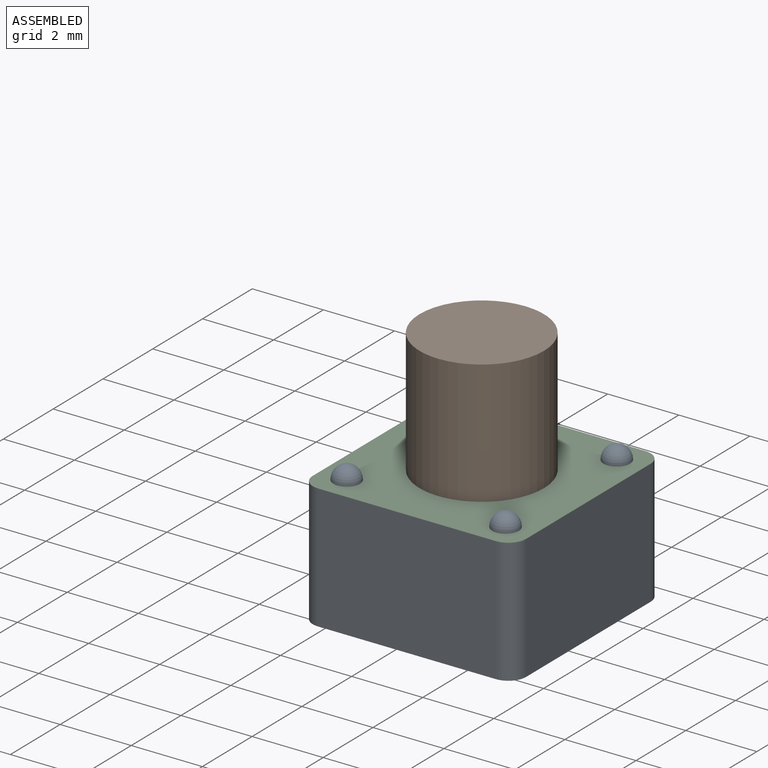
[diagram: assembled view]
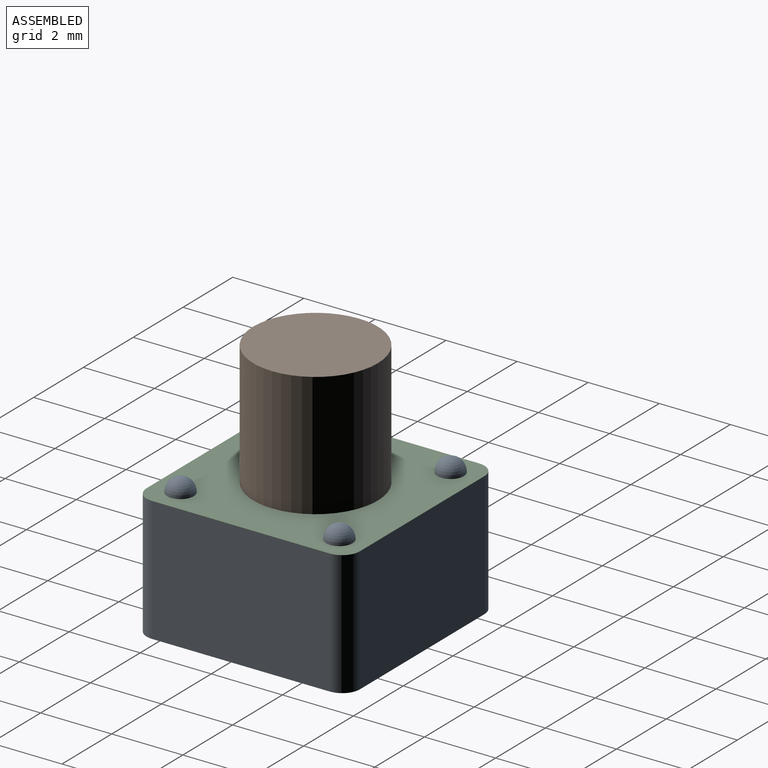
[diagram: assembled view, second angle]
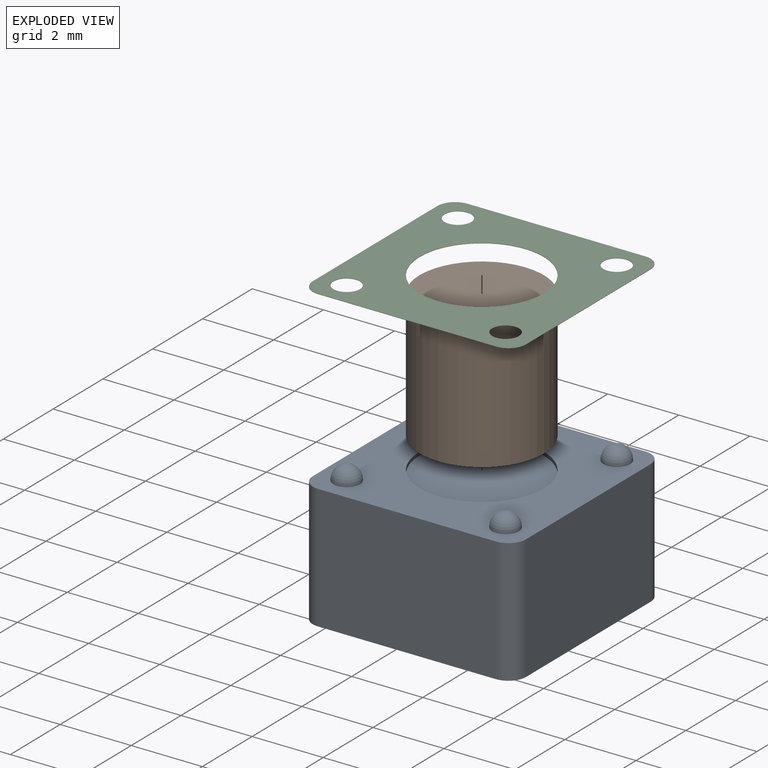
[diagram: exploded view]
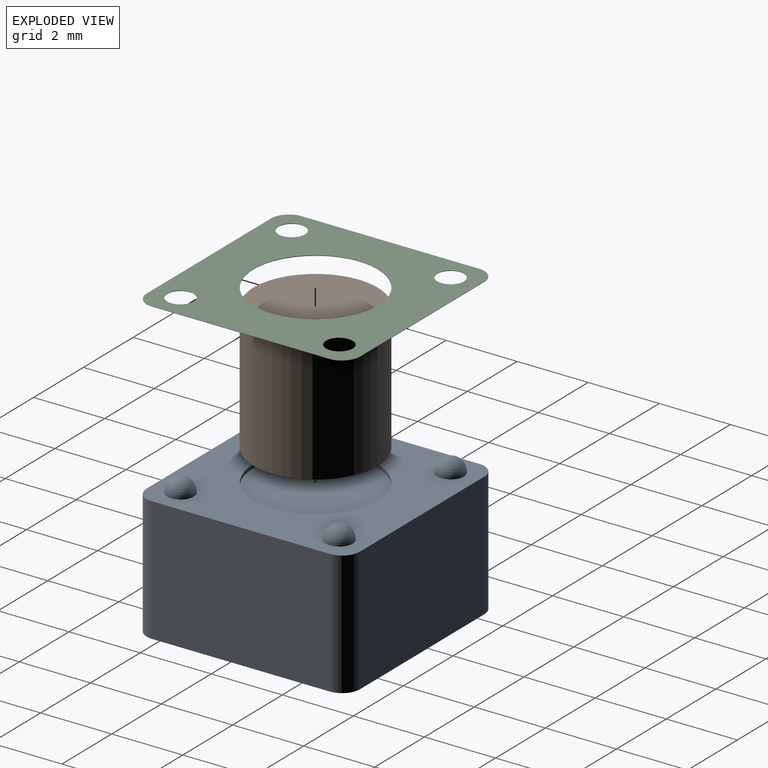
[diagram: exploded view, second angle]
ASSEMBLY  parts=3 mates=2
PART A: 20 faces, bbox 6x6x3.9 mm
  f0: cylinder r=0.5mm len=3.5mm, axis (0,0,1), area 2.7mm2, adj f1,f7,f8,f9
  f1: plane 5x3.5mm, normal (0,1,0), area 17.5mm2, adj f0,f2,f8,f9
  f2: cylinder r=0.5mm len=3.5mm, axis (0,0,1), area 2.7mm2, adj f1,f3,f8,f9
  f3: plane 5x3.5mm, normal (-1,0,0), area 17.5mm2, adj f2,f4,f8,f9
  f4: cylinder r=0.5mm len=3.5mm, axis (0,0,1), area 2.7mm2, adj f3,f5,f8,f9
  f5: plane 5x3.5mm, normal (0,-1,0), area 17.5mm2, adj f4,f6,f8,f9
  f6: cylinder r=0.5mm len=3.5mm, axis (0,0,1), area 2.7mm2, adj f5,f7,f8,f9
  f7: plane 5x3.5mm, normal (1,0,0), area 17.5mm2, adj f0,f6,f8,f9
  f8: plane 6x6mm, normal (0,0,-1), area 35.8mm2, adj f0,f1,f2,f3,f4,f5,f6,f7
  f9: plane 6x6mm, normal (0,0,1), area 24.4mm2, adj f0,f1,f2,f3,f4,f5,f6,f7
  f10: cylinder r=0.38mm len=0.75mm, axis (0,0,-1), area 0.1mm2, adj f9,f17
  f11: cylinder r=0.38mm len=0.75mm, axis (0,0,-1), area 0.1mm2, adj f9,f14
  f12: cylinder r=0.38mm len=0.75mm, axis (0,0,-1), area 0.1mm2, adj f9,f15
  f13: cylinder r=0.38mm len=0.75mm, axis (0,0,-1), area 0.1mm2, adj f9,f16
  f14: sphere r=0.38mm, area 0.9mm2, adj f11
  f15: sphere r=0.38mm, area 0.9mm2, adj f12
  f16: sphere r=0.38mm, area 0.9mm2, adj f13
  f17: sphere r=0.38mm, area 0.9mm2, adj f10
  f18: cylinder r=1.75mm len=3.5mm, axis (0,0,1), area 1.1mm2, adj f9,f19
  f19: plane 3.5x3.5mm, normal (0,0,1), area 9.6mm2, adj f18
PART B: 3 faces, bbox 3.5x3.5x3.6 mm
  f0: cylinder r=1.75mm len=3.6mm, axis (0,0,-1), area 39.6mm2, adj f1,f2
  f1: plane 3.5x3.5mm, normal (0,0,1), area 9.6mm2, adj f0
  f2: plane 3.5x3.5mm, normal (0,0,-1), area 9.6mm2, adj f0
PART C: 15 faces, bbox 6x6x0 mm
  f0: cylinder r=0.5mm len=0.5mm, axis (0,0,-1), area 0mm2, adj f1,f12,f13,f14
  f1: plane 5x0.01mm, normal (0,1,0), area 0.1mm2, adj f0,f2,f13,f14
  f2: cylinder r=0.5mm len=0.5mm, axis (0,0,-1), area 0mm2, adj f1,f3,f13,f14
  f3: plane 5x0.01mm, normal (-1,0,0), area 0mm2, adj f2,f4,f13,f14
  f4: cylinder r=0.5mm len=0.5mm, axis (0,0,-1), area 0mm2, adj f3,f5,f13,f14
  f5: plane 5x0.01mm, normal (0,-1,0), area 0.1mm2, adj f4,f6,f13,f14
  f6: cylinder r=0.5mm len=0.5mm, axis (0,0,-1), area 0mm2, adj f5,f12,f13,f14
  f7: cylinder r=0.38mm len=0.75mm, axis (0,0,-1), area 0mm2, adj f13,f14
  f8: cylinder r=0.38mm len=0.75mm, axis (0,0,-1), area 0mm2, adj f13,f14
  f9: cylinder r=0.38mm len=0.75mm, axis (0,0,-1), area 0mm2, adj f13,f14
  f10: cylinder r=0.38mm len=0.75mm, axis (0,0,-1), area 0mm2, adj f13,f14
  f11: cylinder r=1.75mm len=3.5mm, axis (0,0,-1), area 0.1mm2, adj f13,f14
  f12: plane 5x0.01mm, normal (1,0,0), area 0mm2, adj f0,f6,f13,f14
  f13: plane 6x6mm, normal (0,0,1), area 24.4mm2, adj f0,f1,f2,f3,f4,f5,f6,f7
  f14: plane 6x6mm, normal (0,0,-1), area 24.4mm2, adj f0,f1,f2,f3,f4,f5,f6,f7
PLACE A t=(14.11,-6.08,4.81)mm
PLACE B t=(14.11,-6.08,4.81)mm
PLACE C t=(14.11,-6.08,4.81)mm
MATE fastened C.f11 <-> A.f18  axis (0,0,-1) through (-25.49,-11.51,4.81)mm
MATE fastened B.f0 <-> A.f18  axis (0,0,-1) through (-25.49,-11.51,4.71)mm
